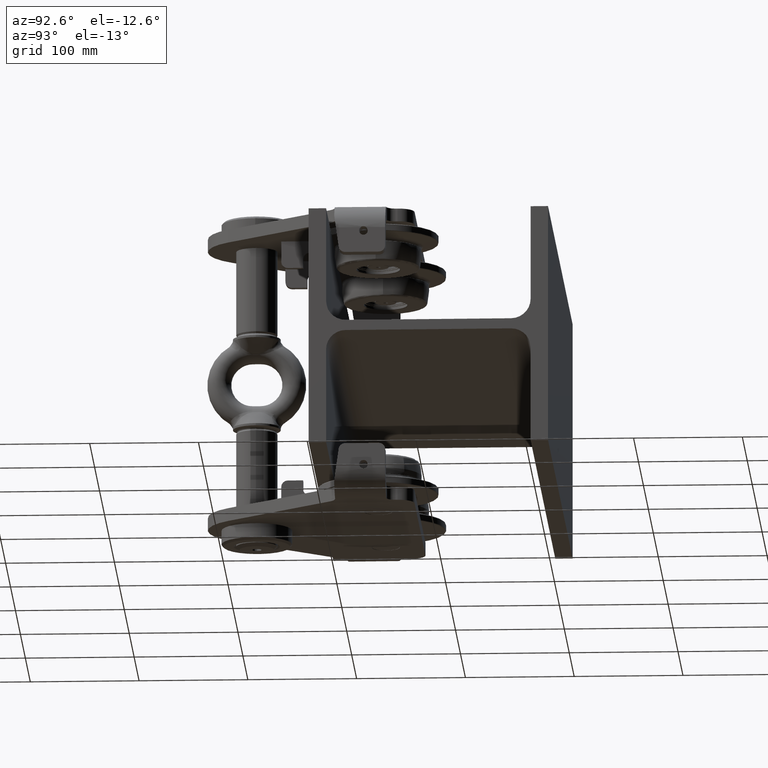
[diagram: clean part render]
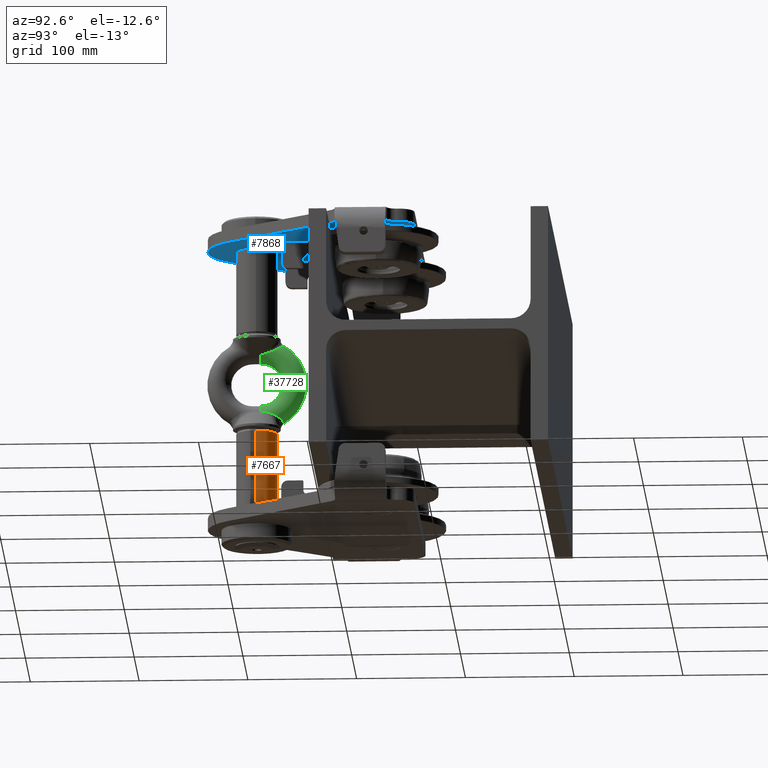
[diagram: same view with three faces highlighted in distinct colors, each labeled with its STEP entity id]
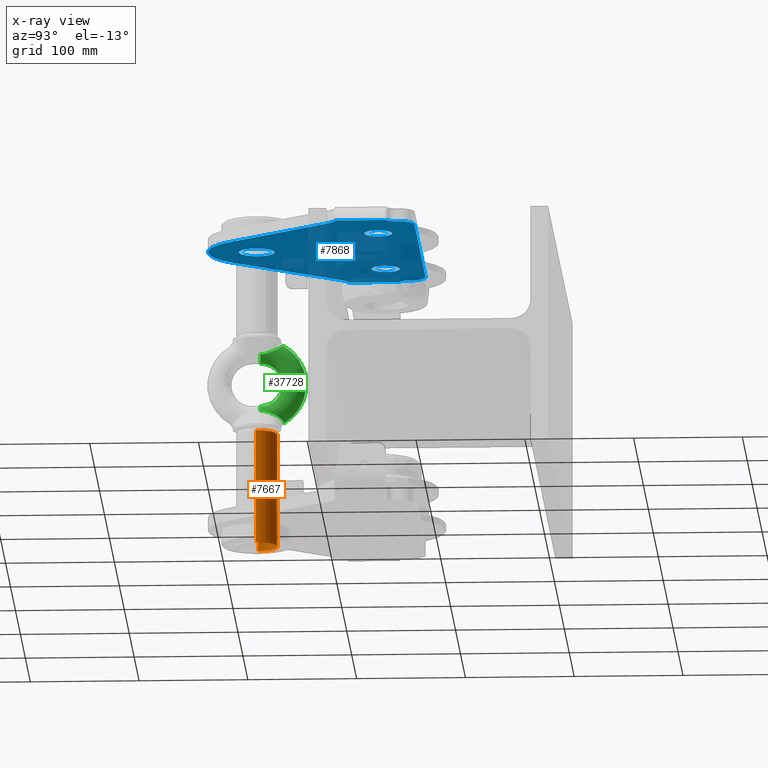
[diagram: x-ray of the same camera — body ghosted, the three highlighted faces saturated]
A machine part, auxiliary view with three faces highlighted in distinct colors.
The next image is the same camera in x-ray (body ghosted, the three faces saturated) — at least one of them is partly hidden behind the body in this view.
Their STEP definitions:

[orange] entity #7667 — the highlighted cylindrical surface (edge-blend (fillet) strip) has radius 19 mm, axis along (-0, -0, -1).
#901 = LINE ( 'NONE', #17243, #23767 ) ;
#1250 = VERTEX_POINT ( 'NONE', #22124 ) ;
#3494 = EDGE_LOOP ( 'NONE', ( #8342, #21098, #26257, #6305 ) ) ;
#4236 = CARTESIAN_POINT ( 'NONE',  ( 1.443643618471284600E-013, -168.9999999999998900, -152.0000000000000000 ) ) ;
#4378 = VECTOR ( 'NONE', #20539, 1000.000000000000000 ) ;
#5847 = CARTESIAN_POINT ( 'NONE',  ( 1.516712347100681800E-013, -168.9999999999998900, -46.59348674296335700 ) ) ;
#6305 = ORIENTED_EDGE ( 'NONE', *, *, #21655, .F. ) ;
#6771 = LINE ( 'NONE', #23364, #4378 ) ;
#6836 = CIRCLE ( 'NONE', #33914, 19.00000000000000000 ) ;
#7667 = ADVANCED_FACE ( 'NONE', ( #14008 ), #37176, .T. ) ;
#8342 = ORIENTED_EDGE ( 'NONE', *, *, #23177, .F. ) ;
#9094 = DIRECTION ( 'NONE',  ( -6.932088575135509200E-017, -5.548357037863925300E-017, -1.000000000000000000 ) ) ;
#9216 = VERTEX_POINT ( 'NONE', #19567 ) ;
#11595 = CIRCLE ( 'NONE', #13933, 19.00000000000000000 ) ;
#11972 = DIRECTION ( 'NONE',  ( 6.932088575135509200E-017, 5.548357037863925300E-017, 1.000000000000000000 ) ) ;
#13933 = AXIS2_PLACEMENT_3D ( 'NONE', #5847, #11972, #36175 ) ;
#14008 = FACE_OUTER_BOUND ( 'NONE', #3494, .T. ) ;
#14330 = DIRECTION ( 'NONE',  ( -6.932088575135509200E-017, -5.548357037863925300E-017, -1.000000000000000000 ) ) ;
#15113 = CARTESIAN_POINT ( 'NONE',  ( 1.432934108296187000E-013, -168.9999999999998900, -167.4491825357096100 ) ) ;
#16611 = DIRECTION ( 'NONE',  ( 6.932088575135509200E-017, 5.548357037863925300E-017, 1.000000000000000000 ) ) ;
#17243 = CARTESIAN_POINT ( 'NONE',  ( -18.99999999999985800, -168.9999999999998900, -167.4491825357096100 ) ) ;
#19567 = CARTESIAN_POINT ( 'NONE',  ( -18.99999999999985400, -168.9999999999998900, -152.0000000000000000 ) ) ;
#20539 = DIRECTION ( 'NONE',  ( -6.932088575135509200E-017, -5.548357037863925300E-017, -1.000000000000000000 ) ) ;
#20939 = CARTESIAN_POINT ( 'NONE',  ( -18.99999999999984700, -168.9999999999998900, -46.59348674296335700 ) ) ;
#21098 = ORIENTED_EDGE ( 'NONE', *, *, #23576, .T. ) ;
#21655 = EDGE_CURVE ( 'NONE', #22188, #9216, #901, .T. ) ;
#22124 = CARTESIAN_POINT ( 'NONE',  ( 19.00000000000014600, -168.9999999999998900, -152.0000000000000000 ) ) ;
#22188 = VERTEX_POINT ( 'NONE', #20939 ) ;
#23175 = CARTESIAN_POINT ( 'NONE',  ( 19.00000000000015300, -168.9999999999998900, -46.59348674296335700 ) ) ;
#23177 = EDGE_CURVE ( 'NONE', #28883, #22188, #11595, .T. ) ;
#23364 = CARTESIAN_POINT ( 'NONE',  ( 19.00000000000014200, -168.9999999999998900, -167.4491825357096100 ) ) ;
#23576 = EDGE_CURVE ( 'NONE', #28883, #1250, #6771, .T. ) ;
#23767 = VECTOR ( 'NONE', #14330, 1000.000000000000000 ) ;
#24388 = DIRECTION ( 'NONE',  ( -1.000000000000000000, 0.0000000000000000000, 0.0000000000000000000 ) ) ;
#25753 = DIRECTION ( 'NONE',  ( -1.000000000000000000, 0.0000000000000000000, 0.0000000000000000000 ) ) ;
#25759 = EDGE_CURVE ( 'NONE', #1250, #9216, #6836, .T. ) ;
#26257 = ORIENTED_EDGE ( 'NONE', *, *, #25759, .T. ) ;
#28408 = AXIS2_PLACEMENT_3D ( 'NONE', #15113, #9094, #24388 ) ;
#28883 = VERTEX_POINT ( 'NONE', #23175 ) ;
#33914 = AXIS2_PLACEMENT_3D ( 'NONE', #4236, #16611, #25753 ) ;
#36175 = DIRECTION ( 'NONE',  ( -1.000000000000000000, 0.0000000000000000000, 0.0000000000000000000 ) ) ;
#37176 = CYLINDRICAL_SURFACE ( 'NONE', #28408, 19.00000000000000000 ) ;

[blue] entity #7868 — the highlighted planar face has unit normal (-0, 0, -1).
#84 = VERTEX_POINT ( 'NONE', #11061 ) ;
#349 = ORIENTED_EDGE ( 'NONE', *, *, #984, .T. ) ;
#395 = CARTESIAN_POINT ( 'NONE',  ( 125.0000000000001700, -33.99999999999987900, 124.9999999999998300 ) ) ;
#407 = DIRECTION ( 'NONE',  ( 0.0000000000000000000, -1.000000000000000000, 0.0000000000000000000 ) ) ;
#957 = LINE ( 'NONE', #15252, #6681 ) ;
#961 = VERTEX_POINT ( 'NONE', #26627 ) ;
#984 = EDGE_CURVE ( 'NONE', #10695, #961, #16761, .T. ) ;
#1485 = VERTEX_POINT ( 'NONE', #38772 ) ;
#1924 = EDGE_CURVE ( 'NONE', #13274, #1485, #21183, .T. ) ;
#2083 = DIRECTION ( 'NONE',  ( 1.000000000000000000, 7.395570986446972500E-032, -5.512308538268366200E-017 ) ) ;
#2211 = CARTESIAN_POINT ( 'NONE',  ( -75.00000000000022700, -66.99999999999963100, 124.9999999999998600 ) ) ;
#2288 = DIRECTION ( 'NONE',  ( -1.110223024625156500E-016, 1.000000000000000000, 2.966658630385605200E-016 ) ) ;
#2295 = EDGE_LOOP ( 'NONE', ( #10975, #4950, #37129, #36654, #11104, #36795, #23068, #9393, #23656, #13928, #7126, #2503, #32823, #349, #4390, #31665 ) ) ;
#2377 = CARTESIAN_POINT ( 'NONE',  ( 110.0000000000001600, -18.99999999999998600, 124.9999999999998200 ) ) ;
#2468 = CIRCLE ( 'NONE', #21228, 8.000000000000007100 ) ;
#2503 = ORIENTED_EDGE ( 'NONE', *, *, #15615, .F. ) ;
#2787 = CARTESIAN_POINT ( 'NONE',  ( -120.4964843667723500, -96.61803319927676600, 124.9999999999998900 ) ) ;
#2968 = VECTOR ( 'NONE', #12037, 1000.000000000000000 ) ;
#3135 = CIRCLE ( 'NONE', #34565, 16.50000000000001400 ) ;
#3149 = EDGE_CURVE ( 'NONE', #84, #22080, #37594, .T. ) ;
#3224 = CARTESIAN_POINT ( 'NONE',  ( 110.0000000000001600, -33.99999999999973000, 124.9999999999998300 ) ) ;
#3510 = CIRCLE ( 'NONE', #30796, 15.00000000000000700 ) ;
#3714 = VERTEX_POINT ( 'NONE', #32068 ) ;
#3856 = DIRECTION ( 'NONE',  ( 5.512308538268376100E-017, -2.966658630385585500E-016, 1.000000000000000000 ) ) ;
#4127 = CIRCLE ( 'NONE', #36797, 15.00000000000000700 ) ;
#4204 = ORIENTED_EDGE ( 'NONE', *, *, #20289, .F. ) ;
#4233 = EDGE_CURVE ( 'NONE', #22080, #84, #28877, .T. ) ;
#4390 = ORIENTED_EDGE ( 'NONE', *, *, #22649, .T. ) ;
#4420 = DIRECTION ( 'NONE',  ( 1.110223024625156500E-016, -1.000000000000000000, -2.966658630385605200E-016 ) ) ;
#4515 = DIRECTION ( 'NONE',  ( -5.512308538268376100E-017, 2.966658630385585500E-016, -1.000000000000000000 ) ) ;
#4784 = DIRECTION ( 'NONE',  ( 1.110223024625152700E-016, -1.000000000000000000, 0.0000000000000000000 ) ) ;
#4950 = ORIENTED_EDGE ( 'NONE', *, *, #33277, .T. ) ;
#6060 = VERTEX_POINT ( 'NONE', #38323 ) ;
#6392 = EDGE_CURVE ( 'NONE', #14299, #31538, #32798, .T. ) ;
#6443 = CARTESIAN_POINT ( 'NONE',  ( -155.0000000000002600, -90.99999999999967300, 124.9999999999998900 ) ) ;
#6681 = VECTOR ( 'NONE', #24390, 1000.000000000000100 ) ;
#7126 = ORIENTED_EDGE ( 'NONE', *, *, #9894, .T. ) ;
#7395 = AXIS2_PLACEMENT_3D ( 'NONE', #26675, #32236, #14632 ) ;
#7617 = CARTESIAN_POINT ( 'NONE',  ( 131.0000000000001700, -18.99999999999998200, 124.9999999999998200 ) ) ;
#7868 = ADVANCED_FACE ( 'NONE', ( #21603, #15427, #13499, #19670 ), #31754, .T. ) ;
#8129 = CARTESIAN_POINT ( 'NONE',  ( -132.2002743063657700, -90.99999999999995700, 125.0000000000000000 ) ) ;
#8208 = AXIS2_PLACEMENT_3D ( 'NONE', #38681, #14580, #17735 ) ;
#8474 = VERTEX_POINT ( 'NONE', #2377 ) ;
#9289 = EDGE_CURVE ( 'NONE', #32719, #3714, #26481, .T. ) ;
#9393 = ORIENTED_EDGE ( 'NONE', *, *, #35734, .F. ) ;
#9515 = EDGE_CURVE ( 'NONE', #8474, #33715, #3510, .T. ) ;
#9720 = VECTOR ( 'NONE', #18272, 1000.000000000000000 ) ;
#9784 = ORIENTED_EDGE ( 'NONE', *, *, #4233, .F. ) ;
#9894 = EDGE_CURVE ( 'NONE', #33466, #17492, #2468, .T. ) ;
#10040 = CARTESIAN_POINT ( 'NONE',  ( -131.0000000000002300, -43.74596669241469000, 124.9999999999998900 ) ) ;
#10442 = CARTESIAN_POINT ( 'NONE',  ( 67.32073716276941900, -162.9535669285791400, 124.9999999999998000 ) ) ;
#10506 = DIRECTION ( 'NONE',  ( -5.512308538268376100E-017, 2.966658630385585500E-016, -1.000000000000000000 ) ) ;
#10523 = LINE ( 'NONE', #11788, #39014 ) ;
#10681 = EDGE_LOOP ( 'NONE', ( #4204, #27394 ) ) ;
#10695 = VERTEX_POINT ( 'NONE', #18316 ) ;
#10975 = ORIENTED_EDGE ( 'NONE', *, *, #35345, .T. ) ;
#11040 = DIRECTION ( 'NONE',  ( -5.512308538268376100E-017, 2.966658630385605200E-016, -1.000000000000000000 ) ) ;
#11054 = AXIS2_PLACEMENT_3D ( 'NONE', #16623, #4515, #37362 ) ;
#11061 = CARTESIAN_POINT ( 'NONE',  ( -75.00000000000022700, -40.99999999999963100, 124.9999999999998600 ) ) ;
#11104 = ORIENTED_EDGE ( 'NONE', *, *, #14483, .T. ) ;
#11135 = VECTOR ( 'NONE', #28713, 1000.000000000000000 ) ;
#11338 = CARTESIAN_POINT ( 'NONE',  ( -133.0000000000002800, -35.99999999999986500, 124.9999999999998900 ) ) ;
#11340 = CARTESIAN_POINT ( 'NONE',  ( -125.0000000000002800, -33.99999999999975100, 124.9999999999998900 ) ) ;
#11517 = CARTESIAN_POINT ( 'NONE',  ( 133.0000000000001700, -35.99999999999985100, 124.9999999999998300 ) ) ;
#11788 = CARTESIAN_POINT ( 'NONE',  ( -125.0000000000002800, -213.9999999999999700, 124.9999999999998400 ) ) ;
#12037 = DIRECTION ( 'NONE',  ( -1.110223024625156500E-016, 1.000000000000000000, 2.966658630385605200E-016 ) ) ;
#12641 = CARTESIAN_POINT ( 'NONE',  ( -132.2002743063657700, -105.9999999999999700, 124.9999999999998600 ) ) ;
#13274 = VERTEX_POINT ( 'NONE', #8129 ) ;
#13362 = DIRECTION ( 'NONE',  ( 0.0000000000000000000, -1.000000000000000000, 0.0000000000000000000 ) ) ;
#13499 = FACE_BOUND ( 'NONE', #18393, .T. ) ;
#13605 = CARTESIAN_POINT ( 'NONE',  ( 131.0000000000001700, -213.9999999999999400, 124.9999999999999400 ) ) ;
#13728 = AXIS2_PLACEMENT_3D ( 'NONE', #13605, #11040, #4420 ) ;
#13928 = ORIENTED_EDGE ( 'NONE', *, *, #39218, .T. ) ;
#14131 = ORIENTED_EDGE ( 'NONE', *, *, #3149, .F. ) ;
#14299 = VERTEX_POINT ( 'NONE', #32062 ) ;
#14483 = EDGE_CURVE ( 'NONE', #19168, #33676, #26559, .T. ) ;
#14580 = DIRECTION ( 'NONE',  ( 5.512308538268376100E-017, -2.966658630385585500E-016, 1.000000000000000000 ) ) ;
#14632 = DIRECTION ( 'NONE',  ( 0.0000000000000000000, -1.000000000000000000, 0.0000000000000000000 ) ) ;
#14846 = DIRECTION ( 'NONE',  ( -1.110223024625156500E-016, 1.000000000000000000, 2.966658630385605200E-016 ) ) ;
#15252 = CARTESIAN_POINT ( 'NONE',  ( 35.17517783752603600, -290.8148868745640800, 124.9999999999999400 ) ) ;
#15427 = FACE_BOUND ( 'NONE', #10681, .T. ) ;
#15474 = LINE ( 'NONE', #10442, #19722 ) ;
#15530 = LINE ( 'NONE', #26505, #39215 ) ;
#15615 = EDGE_CURVE ( 'NONE', #28783, #17492, #16732, .T. ) ;
#15672 = CARTESIAN_POINT ( 'NONE',  ( 125.0000000000001700, -213.9999999999999400, 124.9999999999999400 ) ) ;
#16566 = CARTESIAN_POINT ( 'NONE',  ( 74.99999999999965900, -53.99999999999987900, 124.9999999999998600 ) ) ;
#16623 = CARTESIAN_POINT ( 'NONE',  ( -1.665334536937734800E-013, -159.0000000000000600, 124.9999999999998000 ) ) ;
#16732 = LINE ( 'NONE', #23857, #2968 ) ;
#16761 = CIRCLE ( 'NONE', #8208, 15.00000000000001400 ) ;
#16872 = DIRECTION ( 'NONE',  ( -0.6254644533815458800, -0.7802526626395606100, -1.969967990825146100E-016 ) ) ;
#16987 = CARTESIAN_POINT ( 'NONE',  ( 42.91389644517583700, -193.4005449359850400, 124.9999999999997200 ) ) ;
#17364 = VECTOR ( 'NONE', #2288, 1000.000000000000000 ) ;
#17430 = CARTESIAN_POINT ( 'NONE',  ( -1.665334536937734800E-013, -169.0000000000000000, 124.9999999999998000 ) ) ;
#17492 = VERTEX_POINT ( 'NONE', #17575 ) ;
#17575 = CARTESIAN_POINT ( 'NONE',  ( 131.0000000000001700, -43.74596669241470400, 124.9999999999998300 ) ) ;
#17735 = DIRECTION ( 'NONE',  ( -1.850371707708592600E-014, -1.000000000000000000, 0.0000000000000000000 ) ) ;
#18215 = DIRECTION ( 'NONE',  ( -5.512308538268376100E-017, 2.966658630385585500E-016, -1.000000000000000000 ) ) ;
#18244 = AXIS2_PLACEMENT_3D ( 'NONE', #16566, #19214, #13362 ) ;
#18272 = DIRECTION ( 'NONE',  ( 1.000000000000000000, 7.395570986446972500E-032, -5.512308538268366200E-017 ) ) ;
#18316 = CARTESIAN_POINT ( 'NONE',  ( 132.2002743063656600, -90.99999999999965900, 124.9999999999997000 ) ) ;
#18393 = EDGE_LOOP ( 'NONE', ( #25751, #27151 ) ) ;
#18802 = AXIS2_PLACEMENT_3D ( 'NONE', #12641, #3856, #36990 ) ;
#19012 = EDGE_CURVE ( 'NONE', #31538, #14299, #31302, .T. ) ;
#19168 = VERTEX_POINT ( 'NONE', #10040 ) ;
#19214 = DIRECTION ( 'NONE',  ( -5.512308538268376100E-017, 2.966658630385585500E-016, -1.000000000000000000 ) ) ;
#19670 = FACE_BOUND ( 'NONE', #19895, .T. ) ;
#19722 = VECTOR ( 'NONE', #16872, 1000.000000000000000 ) ;
#19724 = EDGE_CURVE ( 'NONE', #39177, #20159, #4127, .T. ) ;
#19895 = EDGE_LOOP ( 'NONE', ( #9784, #14131 ) ) ;
#20159 = VERTEX_POINT ( 'NONE', #36981 ) ;
#20289 = EDGE_CURVE ( 'NONE', #3714, #32719, #3135, .T. ) ;
#20716 = CARTESIAN_POINT ( 'NONE',  ( -125.0000000000002800, -35.99999999999973700, 124.9999999999998900 ) ) ;
#20750 = CARTESIAN_POINT ( 'NONE',  ( -131.0000000000001700, -213.9999999999999700, 124.9999999999998400 ) ) ;
#21101 = VECTOR ( 'NONE', #36102, 1000.000000000000000 ) ;
#21183 = LINE ( 'NONE', #6443, #9720 ) ;
#21228 = AXIS2_PLACEMENT_3D ( 'NONE', #11517, #23898, #29690 ) ;
#21481 = EDGE_CURVE ( 'NONE', #38153, #6060, #26594, .T. ) ;
#21603 = FACE_OUTER_BOUND ( 'NONE', #2295, .T. ) ;
#21756 = VERTEX_POINT ( 'NONE', #2787 ) ;
#22080 = VERTEX_POINT ( 'NONE', #2211 ) ;
#22098 = DIRECTION ( 'NONE',  ( 0.0000000000000000000, -1.000000000000000000, 0.0000000000000000000 ) ) ;
#22649 = EDGE_CURVE ( 'NONE', #961, #38153, #15474, .T. ) ;
#22930 = CARTESIAN_POINT ( 'NONE',  ( 74.99999999999965900, -66.99999999999987200, 124.9999999999998600 ) ) ;
#23005 = CARTESIAN_POINT ( 'NONE',  ( -1.665334536937734800E-013, -169.0000000000000000, 124.9999999999998000 ) ) ;
#23068 = ORIENTED_EDGE ( 'NONE', *, *, #19724, .T. ) ;
#23656 = ORIENTED_EDGE ( 'NONE', *, *, #9515, .T. ) ;
#23702 = EDGE_CURVE ( 'NONE', #33676, #39177, #10523, .T. ) ;
#23816 = DIRECTION ( 'NONE',  ( -5.512308538268376100E-017, 2.966658630385585500E-016, -1.000000000000000000 ) ) ;
#23857 = CARTESIAN_POINT ( 'NONE',  ( 131.0000000000001700, -213.9999999999999400, 124.9999999999999400 ) ) ;
#23898 = DIRECTION ( 'NONE',  ( 5.512308538268376100E-017, -2.966658630385585500E-016, 1.000000000000000000 ) ) ;
#24089 = DIRECTION ( 'NONE',  ( 0.0000000000000000000, -1.000000000000000000, 0.0000000000000000000 ) ) ;
#24390 = DIRECTION ( 'NONE',  ( -0.6254644533815466600, 0.7802526626395599500, 2.659518600176835700E-016 ) ) ;
#24826 = CARTESIAN_POINT ( 'NONE',  ( 74.99999999999965900, -53.99999999999987900, 124.9999999999998600 ) ) ;
#25539 = EDGE_CURVE ( 'NONE', #1485, #19168, #34412, .T. ) ;
#25692 = CARTESIAN_POINT ( 'NONE',  ( -110.0000000000002700, -33.99999999999991500, 124.9999999999998900 ) ) ;
#25751 = ORIENTED_EDGE ( 'NONE', *, *, #19012, .F. ) ;
#26481 = CIRCLE ( 'NONE', #30070, 16.50000000000001400 ) ;
#26505 = CARTESIAN_POINT ( 'NONE',  ( -155.0000000000002600, -90.99999999999967300, 124.9999999999998900 ) ) ;
#26559 = CIRCLE ( 'NONE', #32953, 8.000000000000007100 ) ;
#26594 = CIRCLE ( 'NONE', #11054, 55.00000000000002100 ) ;
#26627 = CARTESIAN_POINT ( 'NONE',  ( 120.4964843667722400, -96.61803319927648200, 124.9999999999997400 ) ) ;
#26675 = CARTESIAN_POINT ( 'NONE',  ( -75.00000000000022700, -53.99999999999963100, 124.9999999999998600 ) ) ;
#26837 = DIRECTION ( 'NONE',  ( 1.110223024625152700E-016, -1.000000000000000000, 0.0000000000000000000 ) ) ;
#26877 = DIRECTION ( 'NONE',  ( 3.469446951953611000E-015, -1.000000000000000000, 0.0000000000000000000 ) ) ;
#27151 = ORIENTED_EDGE ( 'NONE', *, *, #6392, .F. ) ;
#27394 = ORIENTED_EDGE ( 'NONE', *, *, #9289, .F. ) ;
#27782 = LINE ( 'NONE', #7617, #11135 ) ;
#27925 = AXIS2_PLACEMENT_3D ( 'NONE', #24826, #36565, #407 ) ;
#28713 = DIRECTION ( 'NONE',  ( -1.000000000000000000, -7.395570986446972500E-032, 5.512308538268366200E-017 ) ) ;
#28783 = VERTEX_POINT ( 'NONE', #36270 ) ;
#28877 = CIRCLE ( 'NONE', #7395, 12.99999999999999800 ) ;
#29110 = LINE ( 'NONE', #15672, #21101 ) ;
#29690 = DIRECTION ( 'NONE',  ( 1.040834085586083300E-014, -1.000000000000000000, 0.0000000000000000000 ) ) ;
#30070 = AXIS2_PLACEMENT_3D ( 'NONE', #17430, #23816, #26837 ) ;
#30796 = AXIS2_PLACEMENT_3D ( 'NONE', #3224, #18215, #24089 ) ;
#31190 = CARTESIAN_POINT ( 'NONE',  ( -75.00000000000022700, -53.99999999999963100, 124.9999999999998600 ) ) ;
#31302 = CIRCLE ( 'NONE', #27925, 12.99999999999999800 ) ;
#31446 = AXIS2_PLACEMENT_3D ( 'NONE', #31190, #33977, #22098 ) ;
#31538 = VERTEX_POINT ( 'NONE', #22930 ) ;
#31665 = ORIENTED_EDGE ( 'NONE', *, *, #21481, .T. ) ;
#31754 = PLANE ( 'NONE',  #13728 ) ;
#32009 = DIRECTION ( 'NONE',  ( 0.0000000000000000000, -1.000000000000000000, 0.0000000000000000000 ) ) ;
#32062 = CARTESIAN_POINT ( 'NONE',  ( 74.99999999999965900, -40.99999999999988600, 124.9999999999998600 ) ) ;
#32068 = CARTESIAN_POINT ( 'NONE',  ( -1.661052751837149900E-013, -152.5000000000000000, 124.9999999999998000 ) ) ;
#32236 = DIRECTION ( 'NONE',  ( -5.512308538268376100E-017, 2.966658630385585500E-016, -1.000000000000000000 ) ) ;
#32336 = DIRECTION ( 'NONE',  ( -5.512308538268376100E-017, 2.966658630385585500E-016, -1.000000000000000000 ) ) ;
#32719 = VERTEX_POINT ( 'NONE', #38934 ) ;
#32798 = CIRCLE ( 'NONE', #18244, 12.99999999999999800 ) ;
#32804 = DIRECTION ( 'NONE',  ( 5.512308538268376100E-017, -2.966658630385585500E-016, 1.000000000000000000 ) ) ;
#32823 = ORIENTED_EDGE ( 'NONE', *, *, #34184, .T. ) ;
#32953 = AXIS2_PLACEMENT_3D ( 'NONE', #11338, #32804, #26877 ) ;
#33277 = EDGE_CURVE ( 'NONE', #21756, #13274, #35039, .T. ) ;
#33466 = VERTEX_POINT ( 'NONE', #38589 ) ;
#33676 = VERTEX_POINT ( 'NONE', #20716 ) ;
#33715 = VERTEX_POINT ( 'NONE', #395 ) ;
#33977 = DIRECTION ( 'NONE',  ( -5.512308538268376100E-017, 2.966658630385585500E-016, -1.000000000000000000 ) ) ;
#34184 = EDGE_CURVE ( 'NONE', #28783, #10695, #15530, .T. ) ;
#34412 = LINE ( 'NONE', #20750, #17364 ) ;
#34565 = AXIS2_PLACEMENT_3D ( 'NONE', #23005, #32336, #4784 ) ;
#35039 = CIRCLE ( 'NONE', #18802, 15.00000000000001400 ) ;
#35345 = EDGE_CURVE ( 'NONE', #6060, #21756, #957, .T. ) ;
#35734 = EDGE_CURVE ( 'NONE', #8474, #20159, #27782, .T. ) ;
#36102 = DIRECTION ( 'NONE',  ( 1.110223024625156500E-016, -1.000000000000000000, -2.966658630385605200E-016 ) ) ;
#36270 = CARTESIAN_POINT ( 'NONE',  ( 131.0000000000001700, -90.99999999999965900, 124.9999999999997400 ) ) ;
#36565 = DIRECTION ( 'NONE',  ( -5.512308538268376100E-017, 2.966658630385585500E-016, -1.000000000000000000 ) ) ;
#36654 = ORIENTED_EDGE ( 'NONE', *, *, #25539, .T. ) ;
#36795 = ORIENTED_EDGE ( 'NONE', *, *, #23702, .T. ) ;
#36797 = AXIS2_PLACEMENT_3D ( 'NONE', #25692, #10506, #32009 ) ;
#36981 = CARTESIAN_POINT ( 'NONE',  ( -110.0000000000002700, -18.99999999999990100, 124.9999999999998900 ) ) ;
#36990 = DIRECTION ( 'NONE',  ( -1.850371707708592600E-014, -1.000000000000000000, 0.0000000000000000000 ) ) ;
#37129 = ORIENTED_EDGE ( 'NONE', *, *, #1924, .T. ) ;
#37362 = DIRECTION ( 'NONE',  ( 1.110223024625154800E-016, -1.000000000000000000, -2.523234146875355000E-016 ) ) ;
#37594 = CIRCLE ( 'NONE', #31446, 12.99999999999999800 ) ;
#38153 = VERTEX_POINT ( 'NONE', #16987 ) ;
#38323 = CARTESIAN_POINT ( 'NONE',  ( -42.91389644517590100, -193.4005449359851000, 124.9999999999997700 ) ) ;
#38589 = CARTESIAN_POINT ( 'NONE',  ( 125.0000000000001700, -35.99999999999986500, 124.9999999999998300 ) ) ;
#38681 = CARTESIAN_POINT ( 'NONE',  ( 132.2002743063650300, -105.9999999999996700, 124.9999999999997300 ) ) ;
#38772 = CARTESIAN_POINT ( 'NONE',  ( -131.0000000000002800, -90.99999999999995700, 124.9999999999998900 ) ) ;
#38934 = CARTESIAN_POINT ( 'NONE',  ( -1.644622064210450900E-013, -185.5000000000000300, 124.9999999999998000 ) ) ;
#39014 = VECTOR ( 'NONE', #14846, 1000.000000000000000 ) ;
#39177 = VERTEX_POINT ( 'NONE', #11340 ) ;
#39215 = VECTOR ( 'NONE', #2083, 1000.000000000000000 ) ;
#39218 = EDGE_CURVE ( 'NONE', #33715, #33466, #29110, .T. ) ;

[green] entity #37728 — the highlighted toroidal blend (fillet) surface has major radius 31 mm and minor (blend) radius 11 mm.
#382 = VERTEX_POINT ( 'NONE', #25152 ) ;
#771 = VERTEX_POINT ( 'NONE', #13523 ) ;
#993 = CARTESIAN_POINT ( 'NONE',  ( 1.667841704943140700E-013, -165.4999999999998900, 30.99999999999999300 ) ) ;
#1125 = EDGE_CURVE ( 'NONE', #5000, #26073, #38034, .T. ) ;
#1575 = VERTEX_POINT ( 'NONE', #10546 ) ;
#1784 = DIRECTION ( 'NONE',  ( -1.000000000000000000, 0.0000000000000000000, 6.939431567305113600E-017 ) ) ;
#1866 = EDGE_CURVE ( 'NONE', #5483, #3292, #3997, .T. ) ;
#1934 = CARTESIAN_POINT ( 'NONE',  ( 10.00427978849759500, -149.3788448591955400, -31.73658305614157600 ) ) ;
#2263 = CARTESIAN_POINT ( 'NONE',  ( 5.594144851173275000, -145.0640565963806800, 34.93690126646291100 ) ) ;
#2396 = DIRECTION ( 'NONE',  ( -1.000000000000000000, 0.0000000000000000000, 0.0000000000000000000 ) ) ;
#2695 = CARTESIAN_POINT ( 'NONE',  ( 10.94098412003004700, -156.7070407704747800, -28.32622397576735900 ) ) ;
#2833 = CARTESIAN_POINT ( 'NONE',  ( 10.33495784439558700, -161.5685129012794100, -26.94957099863733400 ) ) ;
#2970 = EDGE_CURVE ( 'NONE', #19550, #5483, #4231, .T. ) ;
#3007 = CARTESIAN_POINT ( 'NONE',  ( 1.599590690454078100E-013, -144.1104387067888700, -36.14535471791595000 ) ) ;
#3148 = CARTESIAN_POINT ( 'NONE',  ( 3.317210764557768400, -144.3822067124088200, -35.71745728358009600 ) ) ;
#3292 = VERTEX_POINT ( 'NONE', #24757 ) ;
#3773 = CARTESIAN_POINT ( 'NONE',  ( 1.348441268214604300, -144.1393354247709100, 36.09000583857596900 ) ) ;
#3854 = B_SPLINE_CURVE_WITH_KNOTS ( 'NONE', 3,
 ( #29863, #5462, #36043, #26682, #17661, #11284, #32625, #20463, #14767, #32498, #11841, #20602, #8505, #26822 ),
 .UNSPECIFIED., .F., .F.,
 ( 4, 2, 2, 2, 2, 2, 4 ),
 ( 0.0000000000000000000, 0.001702921818969915100, 0.003405843637939830300, 0.006811687275879739500, 0.008514609094849693400, 0.01021753091381964700, 0.01362337455175947600 ),
 .UNSPECIFIED. ) ;
#3997 = B_SPLINE_CURVE_WITH_KNOTS ( 'NONE', 3,
 ( #24389, #24270, #3148, #15627, #24655, #12675, #30693, #3007 ),
 .UNSPECIFIED., .F., .F.,
 ( 4, 2, 2, 4 ),
 ( 0.0000000000000000000, 0.001018688722446135500, 0.002037377444892271000, 0.004074754889784548900 ),
 .UNSPECIFIED. ) ;
#4231 = B_SPLINE_CURVE_WITH_KNOTS ( 'NONE', 3,
 ( #25840, #17080, #20115, #1934, #14279, #32289, #35323, #10670, #38124, #31903, #7763, #14160, #17201, #34947, #16822, #23075, #8543, #27007 ),
 .UNSPECIFIED., .F., .F.,
 ( 4, 2, 2, 2, 2, 2, 2, 2, 4 ),
 ( 0.0000000000000000000, 0.003136678570330308100, 0.004705017855495469300, 0.006273357140660630100, 0.007057526783243212200, 0.007841696425825795200, 0.009410035710990959400, 0.01097837499615612500, 0.01254671428132129100 ),
 .UNSPECIFIED. ) ;
#5000 = VERTEX_POINT ( 'NONE', #6970 ) ;
#5050 = CARTESIAN_POINT ( 'NONE',  ( 4.444289525175431500, -144.6427283146410900, 35.38635958993058500 ) ) ;
#5462 = CARTESIAN_POINT ( 'NONE',  ( 10.92817867632170500, -153.0314581916195800, 29.82615423018513200 ) ) ;
#5483 = VERTEX_POINT ( 'NONE', #32004 ) ;
#5635 = EDGE_CURVE ( 'NONE', #17442, #19550, #14453, .T. ) ;
#6970 = CARTESIAN_POINT ( 'NONE',  ( 2.571684152390592500E-013, -144.1104387067889000, 36.14535471791595000 ) ) ;
#7763 = CARTESIAN_POINT ( 'NONE',  ( 7.983547318026829500, -146.6076298710255800, -33.62792220187212400 ) ) ;
#7808 = AXIS2_PLACEMENT_3D ( 'NONE', #993, #31111, #22290 ) ;
#7937 = CIRCLE ( 'NONE', #22672, 41.99999999999999300 ) ;
#8092 = CARTESIAN_POINT ( 'NONE',  ( 8.924635906856702100, -147.6230213526197300, 32.89092196554771900 ) ) ;
#8505 = CARTESIAN_POINT ( 'NONE',  ( 10.07212869014795100, -164.3654439225932700, 26.57762498147414800 ) ) ;
#8543 = CARTESIAN_POINT ( 'NONE',  ( 4.442267182441587400, -144.6422342310168600, -35.38697326526543200 ) ) ;
#8783 = CARTESIAN_POINT ( 'NONE',  ( 10.40438902202518400, -161.0133217093566300, -27.05705823752181900 ) ) ;
#9048 = CARTESIAN_POINT ( 'NONE',  ( 10.96886813032848300, -153.5497480224876800, -29.59800836118878600 ) ) ;
#9282 = DIRECTION ( 'NONE',  ( 6.939431567305098800E-017, 0.0000000000000000000, 1.000000000000000000 ) ) ;
#9597 = CARTESIAN_POINT ( 'NONE',  ( 2.338293639414599200, -144.2356923343432700, 35.93343989616497000 ) ) ;
#10546 = CARTESIAN_POINT ( 'NONE',  ( 10.04277165718565700, -165.4999999999998900, 26.51193388622316500 ) ) ;
#10670 = CARTESIAN_POINT ( 'NONE',  ( 8.635313615078349200, -147.2746393739153600, -33.13724577591435100 ) ) ;
#11110 = AXIS2_PLACEMENT_3D ( 'NONE', #35644, #14636, #2396 ) ;
#11137 = CARTESIAN_POINT ( 'NONE',  ( 10.48339921332135900, -150.6642906934251300, 30.99203829866703000 ) ) ;
#11284 = CARTESIAN_POINT ( 'NONE',  ( 10.94098412002478000, -156.7070407705345800, 28.32622397574557000 ) ) ;
#11399 = CARTESIAN_POINT ( 'NONE',  ( 6.464776767018936000, -145.4989278442884600, 34.52899101120553400 ) ) ;
#11841 = CARTESIAN_POINT ( 'NONE',  ( 10.33495784439239900, -161.5685129013065800, 26.94957099863246300 ) ) ;
#11862 = CARTESIAN_POINT ( 'NONE',  ( 10.82840416508079300, -157.7650669707891200, -27.94400795688653400 ) ) ;
#12472 = DIRECTION ( 'NONE',  ( -1.000000000000000000, 0.0000000000000000000, 6.939431567305113600E-017 ) ) ;
#12675 = CARTESIAN_POINT ( 'NONE',  ( 1.348868107542841300, -144.1393524764207500, -36.08997109328800700 ) ) ;
#13315 = CARTESIAN_POINT ( 'NONE',  ( 3.956771076925371700, -144.5236214601263800, 35.53429596191680400 ) ) ;
#13523 = CARTESIAN_POINT ( 'NONE',  ( 1.659801814648612200E-013, -165.5000000000001700, -20.00000000000000700 ) ) ;
#13611 = DIRECTION ( 'NONE',  ( 6.939431567305117300E-017, 0.0000000000000000000, 1.000000000000000000 ) ) ;
#14160 = CARTESIAN_POINT ( 'NONE',  ( 7.452365095058923700, -146.1470474290082100, -33.98238249505097700 ) ) ;
#14272 = AXIS2_PLACEMENT_3D ( 'NONE', #24957, #27997, #9282 ) ;
#14279 = CARTESIAN_POINT ( 'NONE',  ( 9.801017030857641600, -148.9631058972091200, -31.99599951611866500 ) ) ;
#14344 = CARTESIAN_POINT ( 'NONE',  ( 9.329820423127333800, -148.1831427245791100, 32.50745927620296500 ) ) ;
#14453 = B_SPLINE_CURVE_WITH_KNOTS ( 'NONE', 3,
 ( #35066, #23179, #24086, #2833, #8783, #21163, #18093, #11862, #2695, #36065, #39164, #9048, #14920, #32918 ),
 .UNSPECIFIED., .F., .F.,
 ( 4, 2, 2, 2, 2, 2, 4 ),
 ( 0.0000000000000000000, 0.003399785676228850900, 0.005099678514343277000, 0.006799571352457702700, 0.01019935702868663000, 0.01189924986680105500, 0.01359914270491548200 ),
 .UNSPECIFIED. ) ;
#14480 = CARTESIAN_POINT ( 'NONE',  ( 8.185152835008020500, -146.7334441081051200, 33.52004130154896400 ) ) ;
#14636 = DIRECTION ( 'NONE',  ( -9.776544661013574600E-031, 1.000000000000000000, -1.414387765019840300E-014 ) ) ;
#14767 = CARTESIAN_POINT ( 'NONE',  ( 10.54822301511928200, -159.9175712153138400, 27.31107865330660200 ) ) ;
#14920 = CARTESIAN_POINT ( 'NONE',  ( 10.92817867631378600, -153.0314581915358500, -29.82615423022252800 ) ) ;
#15627 = CARTESIAN_POINT ( 'NONE',  ( 2.666728321037901600, -144.2770307912126100, -35.86886362339198100 ) ) ;
#16022 = CARTESIAN_POINT ( 'NONE',  ( 10.86059126896376400, -152.5183355050189400, -30.06258340684634700 ) ) ;
#16822 = CARTESIAN_POINT ( 'NONE',  ( 5.832123771986127600, -145.1601384692115500, -34.83856190192356200 ) ) ;
#17022 = CARTESIAN_POINT ( 'NONE',  ( 4.914677211459367500, -144.7907865814031800, 35.21703518008459400 ) ) ;
#17080 = CARTESIAN_POINT ( 'NONE',  ( 10.73526447715008400, -151.5667332062220700, -30.50093904170142900 ) ) ;
#17201 = CARTESIAN_POINT ( 'NONE',  ( 7.073130345851416800, -145.8695921914403800, -34.20754636227960100 ) ) ;
#17260 = CARTESIAN_POINT ( 'NONE',  ( 9.453499129264979900, -148.3749713388915000, 32.37954828270192600 ) ) ;
#17393 = ORIENTED_EDGE ( 'NONE', *, *, #23282, .T. ) ;
#17442 = VERTEX_POINT ( 'NONE', #35685 ) ;
#17525 = CARTESIAN_POINT ( 'NONE',  ( 5.816270571602376400, -145.1636674540839400, 34.83912537833674600 ) ) ;
#17661 = CARTESIAN_POINT ( 'NONE',  ( 11.00309267796281400, -155.1231547358354100, 28.94228350721175100 ) ) ;
#18093 = CARTESIAN_POINT ( 'NONE',  ( 10.62247787539140700, -159.3761334227278600, -27.45760630631675900 ) ) ;
#18932 = CARTESIAN_POINT ( 'NONE',  ( 0.6790874261746466800, -144.1104387067888400, 36.14535471791591400 ) ) ;
#19014 = CARTESIAN_POINT ( 'NONE',  ( 1.659801814648612200E-013, -165.4999999999998900, 19.99999999999999300 ) ) ;
#19183 = CARTESIAN_POINT ( 'NONE',  ( 3.316120144538591500, -144.3820067808298100, 35.71773478486522900 ) ) ;
#19550 = VERTEX_POINT ( 'NONE', #16022 ) ;
#19638 = CIRCLE ( 'NONE', #14272, 20.00000000000000000 ) ;
#19787 = EDGE_CURVE ( 'NONE', #5000, #3292, #7937, .T. ) ;
#20058 = CARTESIAN_POINT ( 'NONE',  ( 9.065727411272277400, -147.8075544102054000, 32.76287081565215000 ) ) ;
#20115 = CARTESIAN_POINT ( 'NONE',  ( 10.51761595167450200, -150.6624809121219100, -30.97972163785797100 ) ) ;
#20463 = CARTESIAN_POINT ( 'NONE',  ( 10.62247787538578900, -159.3761334227697000, 27.45760630630507000 ) ) ;
#20601 = ORIENTED_EDGE ( 'NONE', *, *, #26285, .T. ) ;
#20602 = CARTESIAN_POINT ( 'NONE',  ( 10.15424992020425100, -163.2397406200561500, 26.68313006037045200 ) ) ;
#21163 = CARTESIAN_POINT ( 'NONE',  ( 10.54822301512442600, -159.9175712152756100, -27.31107865331632900 ) ) ;
#22263 = ORIENTED_EDGE ( 'NONE', *, *, #5635, .T. ) ;
#22290 = DIRECTION ( 'NONE',  ( -1.000000000000000000, 0.0000000000000000000, 0.0000000000000000000 ) ) ;
#22317 = ORIENTED_EDGE ( 'NONE', *, *, #1125, .T. ) ;
#22672 = AXIS2_PLACEMENT_3D ( 'NONE', #37962, #1784, #13611 ) ;
#22999 = EDGE_CURVE ( 'NONE', #771, #17442, #29121, .T. ) ;
#23075 = CARTESIAN_POINT ( 'NONE',  ( 4.915222062595276500, -144.7906396381156400, -35.21703198714402600 ) ) ;
#23179 = CARTESIAN_POINT ( 'NONE',  ( 10.07212869014813700, -164.3654439225856000, -26.57762498147459200 ) ) ;
#23282 = EDGE_CURVE ( 'NONE', #31835, #771, #19638, .T. ) ;
#23521 = CARTESIAN_POINT ( 'NONE',  ( 3.956771076925371700, -144.5236214601263800, 35.53429596191680400 ) ) ;
#23792 = ORIENTED_EDGE ( 'NONE', *, *, #22999, .T. ) ;
#24026 = ORIENTED_EDGE ( 'NONE', *, *, #33898, .F. ) ;
#24086 = CARTESIAN_POINT ( 'NONE',  ( 10.15424992020542300, -163.2397406200405800, -26.68313006037190900 ) ) ;
#24270 = CARTESIAN_POINT ( 'NONE',  ( 3.640215113891549900, -144.4462828790528600, -35.63035415390919500 ) ) ;
#24389 = CARTESIAN_POINT ( 'NONE',  ( 3.956771076925365900, -144.5236214601263800, -35.53429596191682500 ) ) ;
#24571 = CARTESIAN_POINT ( 'NONE',  ( 1.646329467084494600E-013, -165.4999999999998900, -7.133086400232466200E-015 ) ) ;
#24655 = CARTESIAN_POINT ( 'NONE',  ( 2.339047010323530400, -144.2357779384319900, -35.93330432656677700 ) ) ;
#24757 = CARTESIAN_POINT ( 'NONE',  ( 1.599590690454078100E-013, -144.1104387067888700, -36.14535471791595000 ) ) ;
#24957 = CARTESIAN_POINT ( 'NONE',  ( 1.659800581875115500E-013, -165.4999999999998900, -7.133086400232466200E-015 ) ) ;
#25152 = CARTESIAN_POINT ( 'NONE',  ( 10.86059126897517800, -152.5183355051055700, 30.06258340680642900 ) ) ;
#25396 = ORIENTED_EDGE ( 'NONE', *, *, #2970, .T. ) ;
#25840 = CARTESIAN_POINT ( 'NONE',  ( 10.86059126896376400, -152.5183355050189400, -30.06258340684634700 ) ) ;
#26051 = CARTESIAN_POINT ( 'NONE',  ( 10.71164741702650700, -151.5760116043118200, 30.51267135128988200 ) ) ;
#26073 = VERTEX_POINT ( 'NONE', #13315 ) ;
#26179 = CARTESIAN_POINT ( 'NONE',  ( 9.800700867284128000, -148.9626238651263500, 31.99632242649501300 ) ) ;
#26285 = EDGE_CURVE ( 'NONE', #382, #1575, #3854, .T. ) ;
#26366 = AXIS2_PLACEMENT_3D ( 'NONE', #24571, #12472, #36167 ) ;
#26682 = CARTESIAN_POINT ( 'NONE',  ( 11.00639672466592600, -154.5951803738126100, 29.15621389706600700 ) ) ;
#26780 = ORIENTED_EDGE ( 'NONE', *, *, #1866, .T. ) ;
#26822 = CARTESIAN_POINT ( 'NONE',  ( 10.04277165718565700, -165.4999999999998900, 26.51193388622316500 ) ) ;
#27007 = CARTESIAN_POINT ( 'NONE',  ( 3.956771076925365900, -144.5236214601263800, -35.53429596191682500 ) ) ;
#27997 = DIRECTION ( 'NONE',  ( -1.000000000000000000, 0.0000000000000000000, 6.939431567305113600E-017 ) ) ;
#29121 = CIRCLE ( 'NONE', #11110, 11.00000000000000200 ) ;
#29557 = CARTESIAN_POINT ( 'NONE',  ( 6.251591481407917400, -145.3810254105827700, 34.63521102394702200 ) ) ;
#29615 = FACE_OUTER_BOUND ( 'NONE', #35840, .T. ) ;
#29863 = CARTESIAN_POINT ( 'NONE',  ( 10.86059126897517800, -152.5183355051055700, 30.06258340680642900 ) ) ;
#30693 = CARTESIAN_POINT ( 'NONE',  ( 0.6792100834338147300, -144.1104387067889800, -36.14535471791597100 ) ) ;
#30700 = CARTESIAN_POINT ( 'NONE',  ( 2.571684152390592500E-013, -144.1104387067889000, 36.14535471791595000 ) ) ;
#31078 = CARTESIAN_POINT ( 'NONE',  ( 3.639611907786141300, -144.4461355082564200, 35.63053719543943700 ) ) ;
#31111 = DIRECTION ( 'NONE',  ( 0.0000000000000000000, -1.000000000000000000, 5.548357037863925900E-017 ) ) ;
#31218 = CARTESIAN_POINT ( 'NONE',  ( 2.665864661292634900, -144.2769148080632500, 35.86904092922450400 ) ) ;
#31835 = VERTEX_POINT ( 'NONE', #19014 ) ;
#31903 = CARTESIAN_POINT ( 'NONE',  ( 8.155000830734621800, -146.7693151622362400, -33.50640926879960100 ) ) ;
#32004 = CARTESIAN_POINT ( 'NONE',  ( 3.956771076925365900, -144.5236214601263800, -35.53429596191682500 ) ) ;
#32227 = CARTESIAN_POINT ( 'NONE',  ( 10.79785756770701100, -152.0420005293372300, 30.28200713136946100 ) ) ;
#32289 = CARTESIAN_POINT ( 'NONE',  ( 9.336924173742593400, -148.1777168127634900, -32.50819245408979400 ) ) ;
#32451 = TOROIDAL_SURFACE ( 'NONE', #26366, 31.00000000000000000, 11.00000000000000000 ) ;
#32498 = CARTESIAN_POINT ( 'NONE',  ( 10.40438902202125600, -161.0133217093875300, 27.05705823751550200 ) ) ;
#32625 = CARTESIAN_POINT ( 'NONE',  ( 10.82840416507465900, -157.7650669708417000, 27.94400795686882000 ) ) ;
#32918 = CARTESIAN_POINT ( 'NONE',  ( 10.86059126896376400, -152.5183355050189400, -30.06258340684634700 ) ) ;
#33278 = CIRCLE ( 'NONE', #7808, 11.00000000000000200 ) ;
#33519 = EDGE_CURVE ( 'NONE', #26073, #382, #33937, .T. ) ;
#33867 = CARTESIAN_POINT ( 'NONE',  ( 3.956771076925371700, -144.5236214601263800, 35.53429596191680400 ) ) ;
#33898 = EDGE_CURVE ( 'NONE', #31835, #1575, #33278, .T. ) ;
#33937 = B_SPLINE_CURVE_WITH_KNOTS ( 'NONE', 3,
 ( #23521, #5050, #17022, #2263, #17525, #29557, #11399, #35386, #14480, #8092, #20058, #14344, #17260, #26179, #35635, #38458, #11137, #26051, #32227, #38721 ),
 .UNSPECIFIED., .F., .F.,
 ( 4, 2, 2, 2, 2, 2, 2, 2, 2, 4 ),
 ( 0.02061757730436921500, 0.02218771759769859500, 0.02297278774436328100, 0.02375785789102797000, 0.02689813847768675000, 0.02768320862435146700, 0.02846827877101618800, 0.03003841906434561200, 0.03160855935767503700, 0.03317869965100446500 ),
 .UNSPECIFIED. ) ;
#34947 = CARTESIAN_POINT ( 'NONE',  ( 6.263021965801645100, -145.3760577223970900, -34.63556435258688300 ) ) ;
#35066 = CARTESIAN_POINT ( 'NONE',  ( 10.04277165718563800, -165.5000000000002600, -26.51193388622314700 ) ) ;
#35179 = ORIENTED_EDGE ( 'NONE', *, *, #33519, .T. ) ;
#35323 = CARTESIAN_POINT ( 'NONE',  ( 9.075204815288236300, -147.8048405382249900, -32.76245228594447700 ) ) ;
#35386 = CARTESIAN_POINT ( 'NONE',  ( 7.486854526796641100, -146.1218139422012100, 33.98886382102946900 ) ) ;
#35635 = CARTESIAN_POINT ( 'NONE',  ( 10.00038694341902700, -149.3706889067902900, 31.74163299078502100 ) ) ;
#35644 = CARTESIAN_POINT ( 'NONE',  ( 1.624817229225848600E-013, -165.5000000000003400, -31.00000000000000700 ) ) ;
#35685 = CARTESIAN_POINT ( 'NONE',  ( 10.04277165718563800, -165.5000000000002600, -26.51193388622314700 ) ) ;
#35840 = EDGE_LOOP ( 'NONE', ( #38727, #22317, #35179, #20601, #24026, #17393, #23792, #22263, #25396, #26780 ) ) ;
#36043 = CARTESIAN_POINT ( 'NONE',  ( 10.96886813033356800, -153.5497480225683400, 29.59800836115376700 ) ) ;
#36065 = CARTESIAN_POINT ( 'NONE',  ( 11.00309267796411700, -155.1231547357646400, -28.94228350724001700 ) ) ;
#36167 = DIRECTION ( 'NONE',  ( -6.939431567305113600E-017, 0.0000000000000000000, -1.000000000000000000 ) ) ;
#37728 = ADVANCED_FACE ( 'NONE', ( #29615 ), #32451, .T. ) ;
#37962 = CARTESIAN_POINT ( 'NONE',  ( 1.646329467084494600E-013, -165.4999999999998900, -7.133086400232466200E-015 ) ) ;
#38034 = B_SPLINE_CURVE_WITH_KNOTS ( 'NONE', 3,
 ( #30700, #18932, #3773, #9597, #31218, #19183, #31078, #33867 ),
 .UNSPECIFIED., .F., .F.,
 ( 4, 2, 2, 4 ),
 ( 0.004075249230072692200, 0.006116763169592288900, 0.007137520139352085100, 0.008158277109111881200 ),
 .UNSPECIFIED. ) ;
#38124 = CARTESIAN_POINT ( 'NONE',  ( 8.480774347110706700, -147.1027951469495500, -33.26110795467422300 ) ) ;
#38458 = CARTESIAN_POINT ( 'NONE',  ( 10.34151703527873600, -150.2205944122693200, 31.24003331463471900 ) ) ;
#38721 = CARTESIAN_POINT ( 'NONE',  ( 10.86059126897517800, -152.5183355051055700, 30.06258340680642900 ) ) ;
#38727 = ORIENTED_EDGE ( 'NONE', *, *, #19787, .F. ) ;
#39164 = CARTESIAN_POINT ( 'NONE',  ( 11.00639672466545000, -154.5951803737383700, -29.15621389709647800 ) ) ;